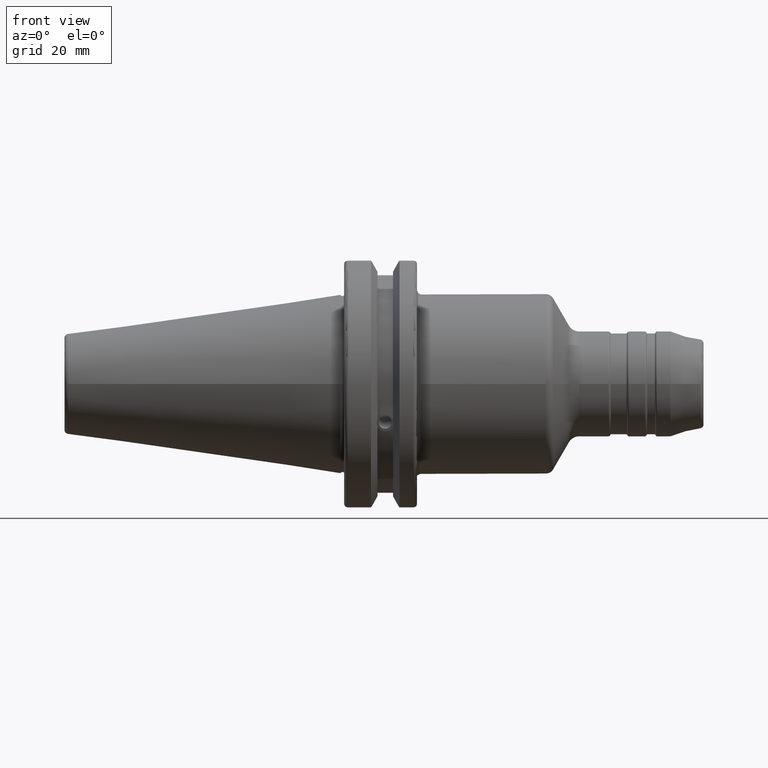
[diagram: clean part render]
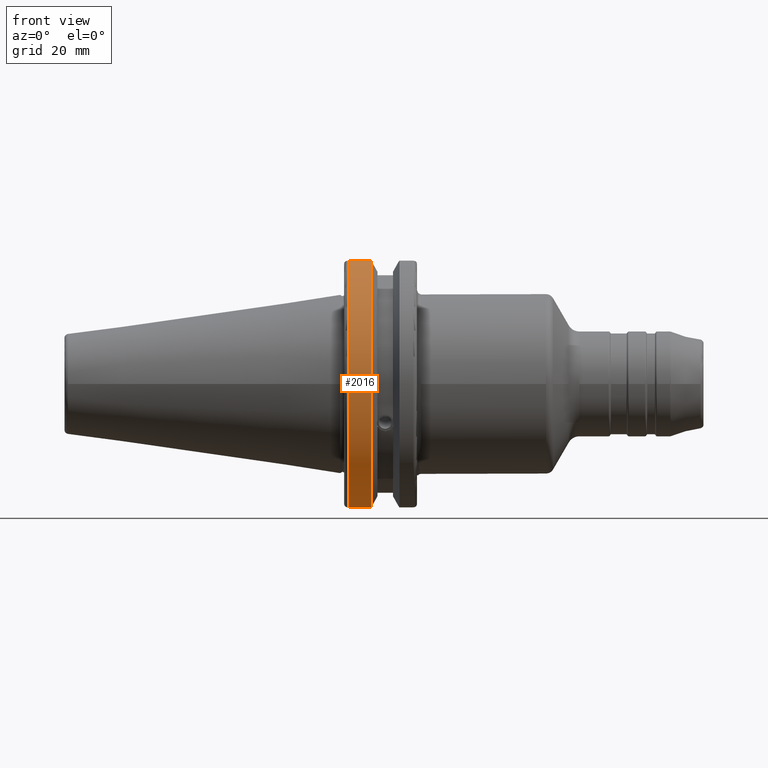
[diagram: same view with one face highlighted and labeled with its STEP entity id]
A machine part, front view. The second image highlights one B-rep face of the part: STEP entity #2016.
In plain terms, the highlighted cylindrical surface (partial cylindrical patch) has radius 31.75 mm, axis along (1, 0, 0).
Its self-contained STEP definition (entity closure, byte-faithful):
#172=CYLINDRICAL_SURFACE('',#2301,31.75);
#252=LINE('',#3806,#347);
#257=LINE('',#3863,#352);
#347=VECTOR('',#2806,10.);
#352=VECTOR('',#2841,10.);
#494=FACE_OUTER_BOUND('',#620,.T.);
#620=EDGE_LOOP('',(#1862,#1863,#1864,#1865));
#736=CIRCLE('',#2247,31.75);
#760=CIRCLE('',#2302,31.75);
#939=VERTEX_POINT('',#3773);
#940=VERTEX_POINT('',#3782);
#945=VERTEX_POINT('',#3805);
#954=VERTEX_POINT('',#3859);
#1215=EDGE_CURVE('',#939,#940,#736,.T.);
#1224=EDGE_CURVE('',#940,#945,#252,.T.);
#1241=EDGE_CURVE('',#954,#939,#257,.T.);
#1270=EDGE_CURVE('',#945,#954,#760,.T.);
#1862=ORIENTED_EDGE('',*,*,#1215,.F.);
#1863=ORIENTED_EDGE('',*,*,#1241,.F.);
#1864=ORIENTED_EDGE('',*,*,#1270,.F.);
#1865=ORIENTED_EDGE('',*,*,#1224,.F.);
#2016=ADVANCED_FACE('',(#494),#172,.T.);
#2247=AXIS2_PLACEMENT_3D('',#3783,#2790,#2791);
#2301=AXIS2_PLACEMENT_3D('',#3932,#2919,#2920);
#2302=AXIS2_PLACEMENT_3D('',#3933,#2921,#2922);
#2790=DIRECTION('center_axis',(-1.,0.,0.));
#2791=DIRECTION('ref_axis',(0.,-1.,1.60812264967664E-16));
#2806=DIRECTION('',(1.,0.,0.));
#2841=DIRECTION('',(-1.,0.,0.));
#2919=DIRECTION('center_axis',(1.,0.,0.));
#2920=DIRECTION('ref_axis',(0.,-1.,1.22464679914735E-16));
#2921=DIRECTION('center_axis',(1.,0.,0.));
#2922=DIRECTION('ref_axis',(0.,0.,-1.));
#3773=CARTESIAN_POINT('',(2.,-8.67204822802685,-30.5427254764662));
#3782=CARTESIAN_POINT('',(2.,-8.67204822802685,30.5427254764662));
#3783=CARTESIAN_POINT('Origin',(2.,0.,0.));
#3805=CARTESIAN_POINT('',(7.64983323092436,-8.67204822802685,30.5427254764662));
#3806=CARTESIAN_POINT('',(4.32491661546218,-8.67204822802685,30.5427254764662));
#3859=CARTESIAN_POINT('',(7.64983323092436,-8.67204822802685,-30.5427254764662));
#3863=CARTESIAN_POINT('',(4.32491661546218,-8.67204822802685,-30.5427254764662));
#3932=CARTESIAN_POINT('Origin',(4.32491661546218,0.,0.));
#3933=CARTESIAN_POINT('Origin',(7.64983323092436,0.,0.));